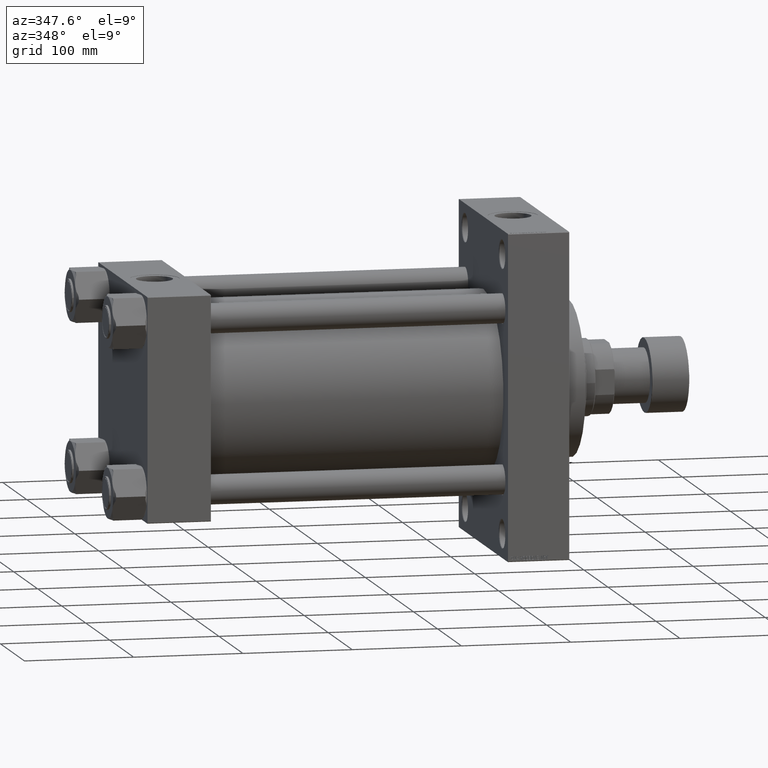
[diagram: clean part render]
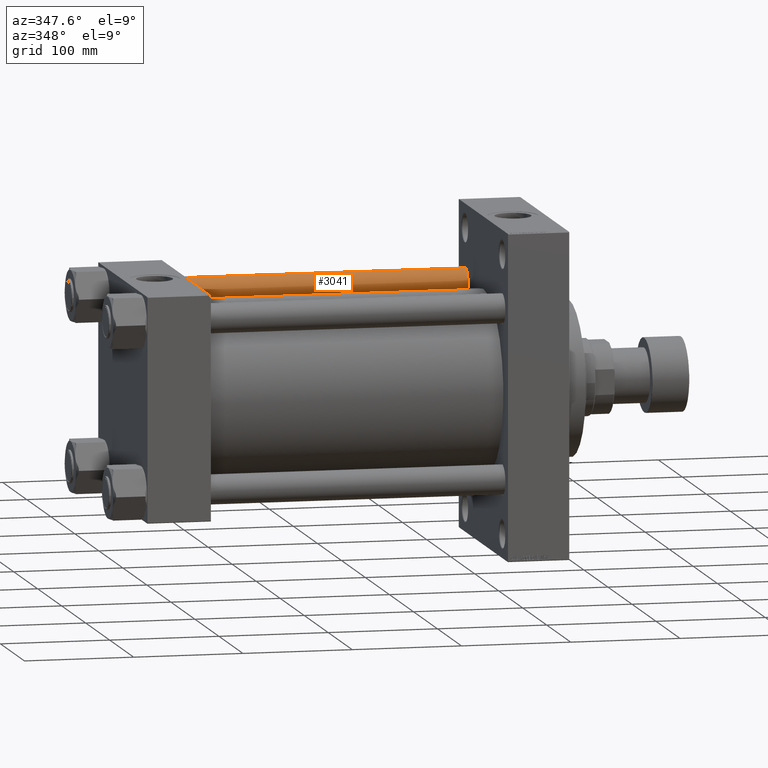
[diagram: same view with one face highlighted and labeled with its STEP entity id]
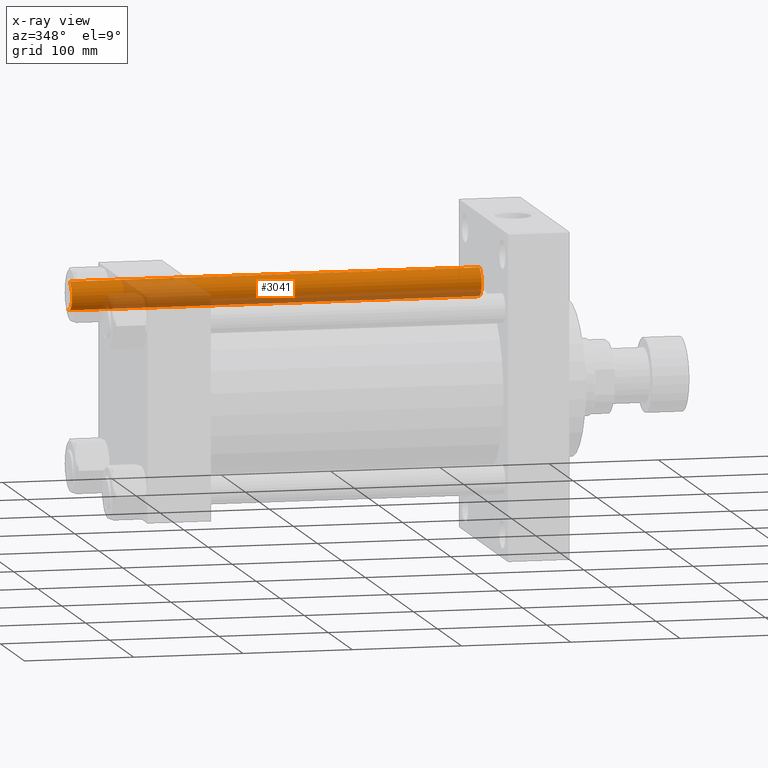
[diagram: x-ray of the same camera — body ghosted, the highlighted face saturated]
A machine part, auxiliary view. The second image highlights one B-rep face of the part: STEP entity #3041.
The next image is the same camera in x-ray: the body ghosted, the highlighted face saturated — about 37% of this face is hidden behind the body in this view.
In plain terms, the highlighted cylindrical surface (edge-blend (fillet) strip) has radius 13.5 mm, axis along (-1, -0, 0).
Its self-contained STEP definition (entity closure, byte-faithful):
#670 = ORIENTED_EDGE ( 'NONE', *, *, #47804, .T. ) ;
#983 = VERTEX_POINT ( 'NONE', #12002 ) ;
#1045 = DIRECTION ( 'NONE',  ( 0.000000000000000000, 0.000000000000000000, -1.000000000000000000 ) ) ;
#1235 = LINE ( 'NONE', #23704, #14104 ) ;
#1750 = DIRECTION ( 'NONE',  ( -0.000000000000000000, -0.000000000000000000, -1.000000000000000000 ) ) ;
#3041 = ADVANCED_FACE ( 'NONE', ( #30851 ), #5418, .T. ) ;
#5418 = CYLINDRICAL_SURFACE ( 'NONE', #43533, 13.50000000000000000 ) ;
#5419 = DIRECTION ( 'NONE',  ( 1.000000000000000000, 0.000000000000000000, 0.000000000000000000 ) ) ;
#6939 = CIRCLE ( 'NONE', #16301, 13.50000000000000000 ) ;
#8182 = VERTEX_POINT ( 'NONE', #43253 ) ;
#8605 = DIRECTION ( 'NONE',  ( -1.000000000000000000, 0.000000000000000000, 0.000000000000000000 ) ) ;
#9065 = EDGE_CURVE ( 'NONE', #37177, #27011, #1235, .T. ) ;
#9072 = CARTESIAN_POINT ( 'NONE',  ( 0.000000000000000000, 0.000000000000000000, 375.5000000000000000 ) ) ;
#9482 = ORIENTED_EDGE ( 'NONE', *, *, #18698, .T. ) ;
#11002 = DIRECTION ( 'NONE',  ( 1.000000000000000000, 0.000000000000000000, 0.000000000000000000 ) ) ;
#12002 = CARTESIAN_POINT ( 'NONE',  ( 13.50000000000000000, 1.653273178848926867E-15, 0.5000000000000004441 ) ) ;
#13883 = CARTESIAN_POINT ( 'NONE',  ( -13.50000000000000000, 0.000000000000000000, 375.5000000000000000 ) ) ;
#14104 = VECTOR ( 'NONE', #38589, 1000.000000000000000 ) ;
#15963 = CARTESIAN_POINT ( 'NONE',  ( 0.000000000000000000, 0.000000000000000000, 376.0000000000000000 ) ) ;
#16301 = AXIS2_PLACEMENT_3D ( 'NONE', #33238, #37367, #11002 ) ;
#18527 = ORIENTED_EDGE ( 'NONE', *, *, #9065, .T. ) ;
#18698 = EDGE_CURVE ( 'NONE', #27011, #983, #6939, .T. ) ;
#20531 = VECTOR ( 'NONE', #29611, 1000.000000000000000 ) ;
#23704 = CARTESIAN_POINT ( 'NONE',  ( -13.50000000000000000, 0.000000000000000000, 376.0000000000000000 ) ) ;
#27011 = VERTEX_POINT ( 'NONE', #46864 ) ;
#27479 = EDGE_LOOP ( 'NONE', ( #29741, #670, #18527, #9482 ) ) ;
#27652 = CIRCLE ( 'NONE', #47891, 13.50000000000000000 ) ;
#29611 = DIRECTION ( 'NONE',  ( -0.000000000000000000, -0.000000000000000000, -1.000000000000000000 ) ) ;
#29741 = ORIENTED_EDGE ( 'NONE', *, *, #45492, .F. ) ;
#30851 = FACE_OUTER_BOUND ( 'NONE', #27479, .T. ) ;
#33238 = CARTESIAN_POINT ( 'NONE',  ( 0.000000000000000000, 0.000000000000000000, 0.5000000000000004441 ) ) ;
#37177 = VERTEX_POINT ( 'NONE', #13883 ) ;
#37367 = DIRECTION ( 'NONE',  ( -0.000000000000000000, -0.000000000000000000, 1.000000000000000000 ) ) ;
#38589 = DIRECTION ( 'NONE',  ( -0.000000000000000000, -0.000000000000000000, -1.000000000000000000 ) ) ;
#40112 = CARTESIAN_POINT ( 'NONE',  ( 13.50000000000000000, 1.653273178848926867E-15, 376.0000000000000000 ) ) ;
#43253 = CARTESIAN_POINT ( 'NONE',  ( 13.50000000000000000, 1.653273178848926867E-15, 375.5000000000000000 ) ) ;
#43533 = AXIS2_PLACEMENT_3D ( 'NONE', #15963, #1750, #8605 ) ;
#44010 = LINE ( 'NONE', #40112, #20531 ) ;
#45492 = EDGE_CURVE ( 'NONE', #8182, #983, #44010, .T. ) ;
#46864 = CARTESIAN_POINT ( 'NONE',  ( -13.50000000000000000, 0.000000000000000000, 0.5000000000000004441 ) ) ;
#47804 = EDGE_CURVE ( 'NONE', #8182, #37177, #27652, .T. ) ;
#47891 = AXIS2_PLACEMENT_3D ( 'NONE', #9072, #1045, #5419 ) ;